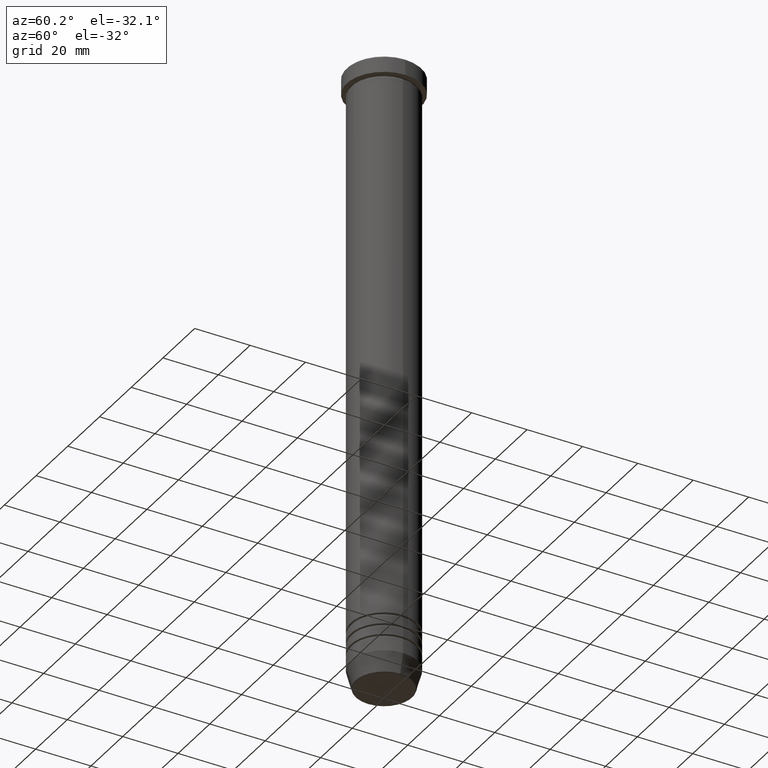
[diagram: clean part render]
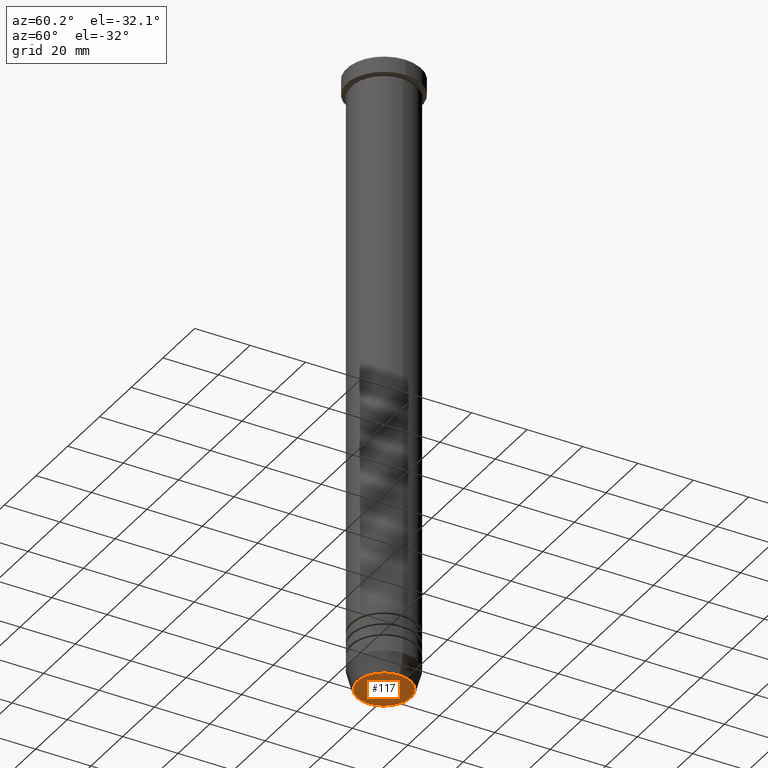
[diagram: same view with one face highlighted and labeled with its STEP entity id]
A machine part, auxiliary view. The second image highlights one B-rep face of the part: STEP entity #117.
In plain terms, the highlighted planar face has unit normal (0, -0, 1).
Its self-contained STEP definition (entity closure, byte-faithful):
#117 = ADVANCED_FACE ( 'NONE', ( #1116 ), #118, .F. ) ;
#118 = PLANE ( 'NONE',  #1037 ) ;
#144 = ORIENTED_EDGE ( 'NONE', *, *, #456, .T. ) ;
#196 = DIRECTION ( 'NONE',  ( 0.000000000000000000, -0.000000000000000000, 1.000000000000000000 ) ) ;
#200 = AXIS2_PLACEMENT_3D ( 'NONE', #935, #455, #792 ) ;
#219 = CARTESIAN_POINT ( 'NONE',  ( -9.740692158992658278, 1.222463696683474801E-15, -225.9999999999999716 ) ) ;
#430 = VERTEX_POINT ( 'NONE', #660 ) ;
#455 = DIRECTION ( 'NONE',  ( 0.000000000000000000, 0.000000000000000000, -1.000000000000000000 ) ) ;
#456 = EDGE_CURVE ( 'NONE', #430, #1117, #712, .T. ) ;
#471 = AXIS2_PLACEMENT_3D ( 'NONE', #1053, #605, #778 ) ;
#605 = DIRECTION ( 'NONE',  ( 0.000000000000000000, 0.000000000000000000, -1.000000000000000000 ) ) ;
#660 = CARTESIAN_POINT ( 'NONE',  ( 9.740692158992658278, 0.000000000000000000, -225.9999999999999716 ) ) ;
#666 = CARTESIAN_POINT ( 'NONE',  ( 0.000000000000000000, 2.039036920580342741E-14, -225.9999999999999716 ) ) ;
#696 = EDGE_LOOP ( 'NONE', ( #144, #1124 ) ) ;
#712 = CIRCLE ( 'NONE', #200, 9.740692158992658278 ) ;
#778 = DIRECTION ( 'NONE',  ( 1.000000000000000000, 0.000000000000000000, 0.000000000000000000 ) ) ;
#788 = CIRCLE ( 'NONE', #471, 9.740692158992658278 ) ;
#792 = DIRECTION ( 'NONE',  ( 1.000000000000000000, 0.000000000000000000, 0.000000000000000000 ) ) ;
#886 = EDGE_CURVE ( 'NONE', #1117, #430, #788, .T. ) ;
#935 = CARTESIAN_POINT ( 'NONE',  ( 0.000000000000000000, 0.000000000000000000, -225.9999999999999716 ) ) ;
#1009 = DIRECTION ( 'NONE',  ( 1.000000000000000000, 0.000000000000000000, 0.000000000000000000 ) ) ;
#1037 = AXIS2_PLACEMENT_3D ( 'NONE', #666, #196, #1009 ) ;
#1053 = CARTESIAN_POINT ( 'NONE',  ( 0.000000000000000000, 0.000000000000000000, -225.9999999999999716 ) ) ;
#1116 = FACE_OUTER_BOUND ( 'NONE', #696, .T. ) ;
#1117 = VERTEX_POINT ( 'NONE', #219 ) ;
#1124 = ORIENTED_EDGE ( 'NONE', *, *, #886, .T. ) ;